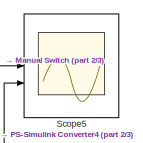
[diagram: root canvas - part 1/3, top center region]
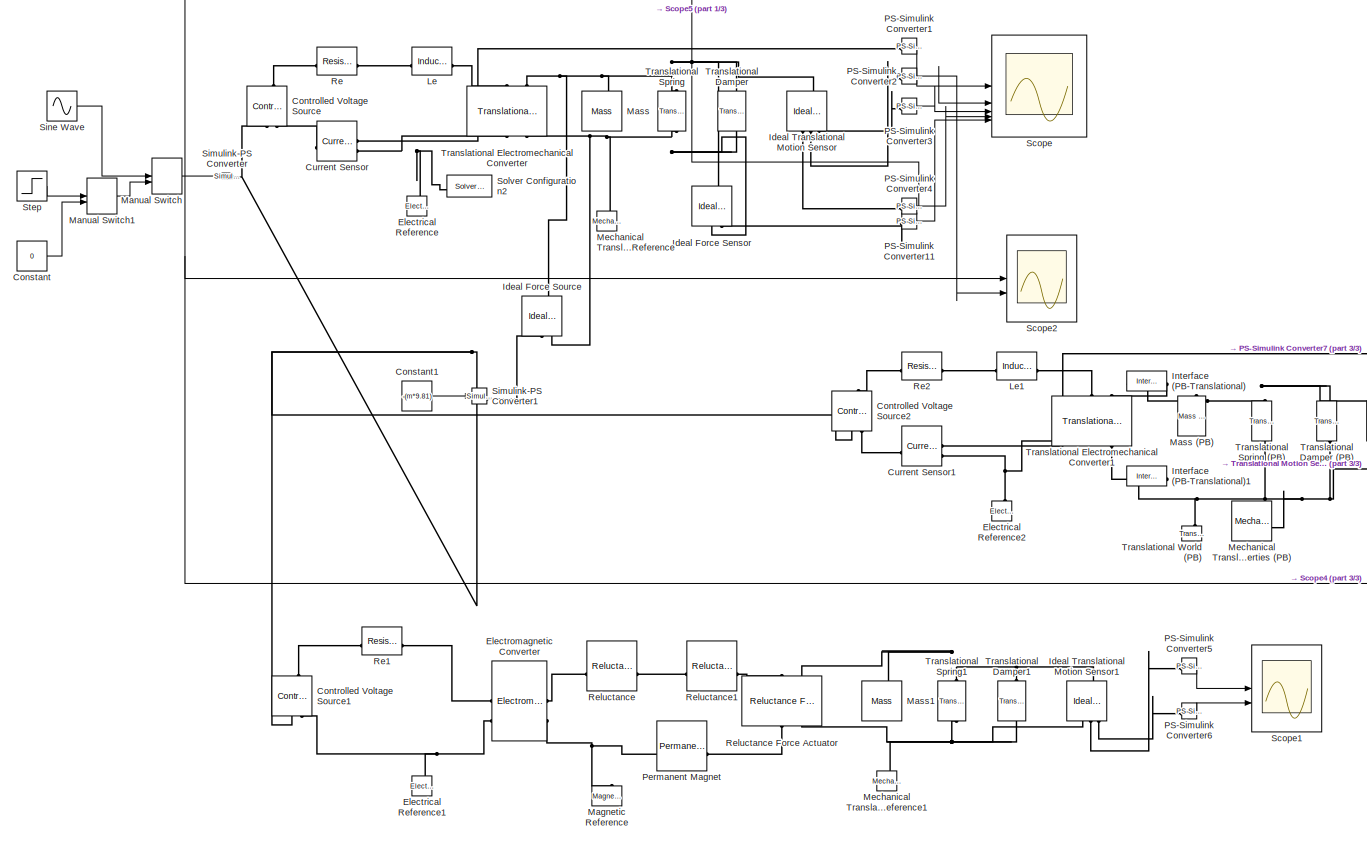
[diagram: root canvas - part 2/3, most of the canvas]
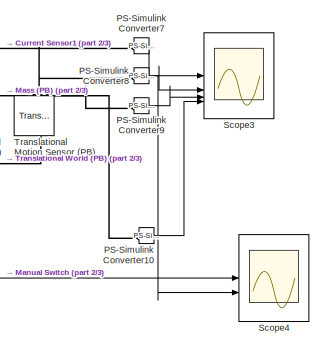
[diagram: root canvas - part 3/3, middle right region]
MODEL slx_aa357332efc0
KIND model
CONFIG AbsTol = auto
CONFIG EnableMultiTasking = off
CONFIG FixedStep = auto
CONFIG MaxStep = 1e-5
CONFIG MinStep = auto
CONFIG RelTol = 1e-3
CONFIG SampleTimeConstraint = Unconstrained
CONFIG SolverName = VariableStepAuto
CONFIG StartTime = 0.0
CONFIG StopTime = 1
BLOCK [Constant] Constant
  Value = 0
BLOCK [Constant] Constant1
  Value = -(m*9.81)
BLOCK [Reference] Controlled Voltage Source  REF=fl_lib/Electrical/Electrical Sources/Controlled Voltage
Source
  NameLocation = right
  SourceBlock = fl_lib/Electrical/Electrical Sources/Controlled Voltage\nSource
  SourceType = Controlled Voltage\nSource
BLOCK [Reference] Controlled Voltage Source1  REF=fl_lib/Electrical/Electrical Sources/Controlled Voltage
Source
  NameLocation = right
  SourceBlock = fl_lib/Electrical/Electrical Sources/Controlled Voltage\nSource
  SourceType = Controlled Voltage\nSource
BLOCK [Reference] Controlled Voltage Source2  REF=fl_lib/Electrical/Electrical Sources/Controlled Voltage
Source
  NameLocation = right
  SourceBlock = fl_lib/Electrical/Electrical Sources/Controlled Voltage\nSource
  SourceType = Controlled Voltage\nSource
BLOCK [Reference] Current Sensor  REF=fl_lib/Electrical/Electrical Sensors/Current Sensor
  SourceBlock = fl_lib/Electrical/Electrical Sensors/Current Sensor
  SourceType = Current Sensor
BLOCK [Reference] Current Sensor1  REF=fl_lib/Electrical/Electrical Sensors/Current Sensor
  SourceBlock = fl_lib/Electrical/Electrical Sensors/Current Sensor
  SourceType = Current Sensor
BLOCK [Reference] Electrical Reference  REF=fl_lib/Electrical/Electrical Elements/Electrical Reference
  NameLocation = right
  SourceBlock = fl_lib/Electrical/Electrical Elements/Electrical Reference
  SourceType = Electrical Reference
BLOCK [Reference] Electrical Reference1  REF=fl_lib/Electrical/Electrical Elements/Electrical Reference
  NameLocation = right
  SourceBlock = fl_lib/Electrical/Electrical Elements/Electrical Reference
  SourceType = Electrical Reference
BLOCK [Reference] Electrical Reference2  REF=fl_lib/Electrical/Electrical Elements/Electrical Reference
  NameLocation = right
  SourceBlock = fl_lib/Electrical/Electrical Elements/Electrical Reference
  SourceType = Electrical Reference
BLOCK [Reference] Electromagnetic Converter  REF=fl_lib/Magnetic/Magnetic Elements/Electromagnetic
Converter
  SourceBlock = fl_lib/Magnetic/Magnetic Elements/Electromagnetic\nConverter
  SourceType = Electromagnetic\nConverter
BLOCK [Reference] Ideal Force Sensor  REF=fl_lib/Mechanical/Mechanical Sensors/Ideal Force Sensor
  NameLocation = left
  SourceBlock = fl_lib/Mechanical/Mechanical Sensors/Ideal Force Sensor
  SourceType = Ideal Force Sensor
BLOCK [Reference] Ideal Force Source  REF=fl_lib/Mechanical/Mechanical Sources/Ideal Force Source
  NameLocation = right
  SourceBlock = fl_lib/Mechanical/Mechanical Sources/Ideal Force Source
  SourceType = Ideal Force Source
BLOCK [Reference] Ideal Translational Motion Sensor  REF=fl_lib/Mechanical/Mechanical Sensors/Ideal Translational
Motion Sensor
  NameLocation = left
  SourceBlock = fl_lib/Mechanical/Mechanical Sensors/Ideal Translational\nMotion Sensor
  SourceType = Ideal Translational\nMotion Sensor
BLOCK [Reference] Ideal Translational Motion Sensor1  REF=fl_lib/Mechanical/Mechanical Sensors/Ideal Translational
Motion Sensor
  NameLocation = left
  SourceBlock = fl_lib/Mechanical/Mechanical Sensors/Ideal Translational\nMotion Sensor
  SourceType = Ideal Translational\nMotion Sensor
BLOCK [Reference] Interface (PB-Translational)  REF=fl_lib/Translational/Utilities/Interface
(PB-Translational)
  NameLocation = top
  SourceBlock = fl_lib/Translational/Utilities/Interface\n(PB-Translational)
  SourceType = Interface\n(PB-Translational)
BLOCK [Reference] Interface (PB-Translational)1  REF=fl_lib/Translational/Utilities/Interface
(PB-Translational)
  NameLocation = top
  SourceBlock = fl_lib/Translational/Utilities/Interface\n(PB-Translational)
  SourceType = Interface\n(PB-Translational)
BLOCK [Reference] Le  REF=fl_lib/Electrical/Electrical Elements/Inductor
  SourceBlock = fl_lib/Electrical/Electrical Elements/Inductor
  SourceType = Inductor
BLOCK [Reference] Le1  REF=fl_lib/Electrical/Electrical Elements/Inductor
  SourceBlock = fl_lib/Electrical/Electrical Elements/Inductor
  SourceType = Inductor
BLOCK [Reference] Magnetic Reference  REF=fl_lib/Magnetic/Magnetic Elements/Magnetic Reference
  NameLocation = right
  SourceBlock = fl_lib/Magnetic/Magnetic Elements/Magnetic Reference
  SourceType = Magnetic Reference
BLOCK [ManualSwitch] Manual Switch
BLOCK [ManualSwitch] Manual Switch1
BLOCK [Reference] Mass  REF=fl_lib/Mechanical/Translational
Elements/Mass
  NameLocation = right
  SourceBlock = fl_lib/Mechanical/Translational\nElements/Mass
  SourceType = Mass
BLOCK [Reference] Mass (PB)  REF=fl_lib/Translational/Elements/Mass (PB)
  NameLocation = left
  SourceBlock = fl_lib/Translational/Elements/Mass (PB)
  SourceType = Mass (PB)
BLOCK [Reference] Mass1  REF=fl_lib/Mechanical/Translational
Elements/Mass
  NameLocation = right
  SourceBlock = fl_lib/Mechanical/Translational\nElements/Mass
  SourceType = Mass
BLOCK [Reference] Mechanical Translational Properties (PB)  REF=fl_lib/Translational/Utilities/Mechanical
Translational
Properties (PB)
  SourceBlock = fl_lib/Translational/Utilities/Mechanical\nTranslational\nProperties (PB)
  SourceType = Mechanical\nTranslational\nProperties (PB)
BLOCK [Reference] Mechanical Translational Reference  REF=fl_lib/Mechanical/Translational
Elements/Mechanical
Translational
Reference
  NameLocation = right
  SourceBlock = fl_lib/Mechanical/Translational\nElements/Mechanical\nTranslational\nReference
  SourceType = Mechanical\nTranslational\nReference
BLOCK [Reference] Mechanical Translational Reference1  REF=fl_lib/Mechanical/Translational
Elements/Mechanical
Translational
Reference
  NameLocation = right
  SourceBlock = fl_lib/Mechanical/Translational\nElements/Mechanical\nTranslational\nReference
  SourceType = Mechanical\nTranslational\nReference
BLOCK [Reference] PS-Simulink Converter1  REF=nesl_utility/PS-Simulink
Converter
  SourceBlock = nesl_utility/PS-Simulink\nConverter
  SourceType = PS-Simulink\nConverter
BLOCK [Reference] PS-Simulink Converter10  REF=nesl_utility/PS-Simulink
Converter
  SourceBlock = nesl_utility/PS-Simulink\nConverter
  SourceType = PS-Simulink\nConverter
BLOCK [Reference] PS-Simulink Converter11  REF=nesl_utility/PS-Simulink
Converter
  SourceBlock = nesl_utility/PS-Simulink\nConverter
  SourceType = PS-Simulink\nConverter
BLOCK [Reference] PS-Simulink Converter2  REF=nesl_utility/PS-Simulink
Converter
  SourceBlock = nesl_utility/PS-Simulink\nConverter
  SourceType = PS-Simulink\nConverter
BLOCK [Reference] PS-Simulink Converter3  REF=nesl_utility/PS-Simulink
Converter
  SourceBlock = nesl_utility/PS-Simulink\nConverter
  SourceType = PS-Simulink\nConverter
BLOCK [Reference] PS-Simulink Converter4  REF=nesl_utility/PS-Simulink
Converter
  SourceBlock = nesl_utility/PS-Simulink\nConverter
  SourceType = PS-Simulink\nConverter
BLOCK [Reference] PS-Simulink Converter5  REF=nesl_utility/PS-Simulink
Converter
  SourceBlock = nesl_utility/PS-Simulink\nConverter
  SourceType = PS-Simulink\nConverter
BLOCK [Reference] PS-Simulink Converter6  REF=nesl_utility/PS-Simulink
Converter
  SourceBlock = nesl_utility/PS-Simulink\nConverter
  SourceType = PS-Simulink\nConverter
BLOCK [Reference] PS-Simulink Converter7  REF=nesl_utility/PS-Simulink
Converter
  SourceBlock = nesl_utility/PS-Simulink\nConverter
  SourceType = PS-Simulink\nConverter
BLOCK [Reference] PS-Simulink Converter8  REF=nesl_utility/PS-Simulink
Converter
  SourceBlock = nesl_utility/PS-Simulink\nConverter
  SourceType = PS-Simulink\nConverter
BLOCK [Reference] PS-Simulink Converter9  REF=nesl_utility/PS-Simulink
Converter
  SourceBlock = nesl_utility/PS-Simulink\nConverter
  SourceType = PS-Simulink\nConverter
BLOCK [Reference] Permanent Magnet  REF=fl_lib/Magnetic/Magnetic Elements/Permanent Magnet
  SourceBlock = fl_lib/Magnetic/Magnetic Elements/Permanent Magnet
  SourceType = Permanent Magnet
BLOCK [Reference] Re  REF=fl_lib/Electrical/Electrical Elements/Resistor
  SourceBlock = fl_lib/Electrical/Electrical Elements/Resistor
  SourceType = Resistor
BLOCK [Reference] Re1  REF=fl_lib/Electrical/Electrical Elements/Resistor
  SourceBlock = fl_lib/Electrical/Electrical Elements/Resistor
  SourceType = Resistor
BLOCK [Reference] Re2  REF=fl_lib/Electrical/Electrical Elements/Resistor
  SourceBlock = fl_lib/Electrical/Electrical Elements/Resistor
  SourceType = Resistor
BLOCK [Reference] Reluctance  REF=fl_lib/Magnetic/Magnetic Elements/Reluctance
  SourceBlock = fl_lib/Magnetic/Magnetic Elements/Reluctance
  SourceType = Reluctance
BLOCK [Reference] Reluctance Force Actuator  REF=fl_lib/Magnetic/Magnetic Elements/Reluctance Force
Actuator
  NameLocation = right
  SourceBlock = fl_lib/Magnetic/Magnetic Elements/Reluctance Force\nActuator
  SourceType = Reluctance Force\nActuator
BLOCK [Reference] Reluctance1  REF=fl_lib/Magnetic/Magnetic Elements/Reluctance
  SourceBlock = fl_lib/Magnetic/Magnetic Elements/Reluctance
  SourceType = Reluctance
BLOCK [Scope] Scope
  Floating = off
  NumInputPorts = 5
  ScopeSpecificationString = Simulink.scopes.TimeScopeBlockCfg('CurrentConfiguration', extmgr.ConfigurationSet(extmgr.Configuration('Core','General UI',true),extmgr.Configuration('Core','Source UI',true),extmgr.Configuration('Sources','WiredSimulink',true),extmgr.Configuration('Visuals','Time Domain',true,'SerializedDisplays',{struct('MinYLimReal','-0.78124','MaxYLimReal','0.78124','YLabelReal','','MinYLimMag','0.00000','MaxY...<+2044ch>
BLOCK [Scope] Scope1
  Floating = off
  NumInputPorts = 2
  ScopeSpecificationString = Simulink.scopes.TimeScopeBlockCfg('CurrentConfiguration', extmgr.ConfigurationSet(extmgr.Configuration('Core','General UI',true),extmgr.Configuration('Core','Source UI',true),extmgr.Configuration('Sources','WiredSimulink',true,'DataLoggingVariableName','ScopeData1'),extmgr.Configuration('Visuals','Time Domain',true,'SerializedDisplays',{struct('MinYLimReal','-0.01097','MaxYLimReal','0.01097','YLab...<+1990ch>
BLOCK [Scope] Scope2
  Floating = off
  NumInputPorts = 2
  ScopeSpecificationString = Simulink.scopes.TimeScopeBlockCfg('CurrentConfiguration', extmgr.ConfigurationSet(extmgr.Configuration('Core','General UI',true),extmgr.Configuration('Core','Source UI',true),extmgr.Configuration('Sources','WiredSimulink',true,'DataLoggingVariableName','ScopeData1'),extmgr.Configuration('Visuals','Time Domain',true,'SerializedDisplays',{struct('MinYLimReal','-17.75606','MaxYLimReal','17.76294','YL...<+1989ch>
BLOCK [Scope] Scope3
  Floating = off
  NumInputPorts = 4
  ScopeSpecificationString = Simulink.scopes.TimeScopeBlockCfg('CurrentConfiguration', extmgr.ConfigurationSet(extmgr.Configuration('Core','General UI',true),extmgr.Configuration('Core','Source UI',true),extmgr.Configuration('Sources','WiredSimulink',true,'DataLoggingVariableName','ScopeData1'),extmgr.Configuration('Visuals','Time Domain',true,'SerializedDisplays',{struct('MinYLimReal','-1.12739','MaxYLimReal','1.14865','YLab...<+2068ch>
BLOCK [Scope] Scope4
  Floating = off
  NumInputPorts = 2
  ScopeSpecificationString = Simulink.scopes.TimeScopeBlockCfg('CurrentConfiguration', extmgr.ConfigurationSet(extmgr.Configuration('Core','General UI',true),extmgr.Configuration('Core','Source UI',true),extmgr.Configuration('Sources','WiredSimulink',true,'DataLoggingVariableName','ScopeData2'),extmgr.Configuration('Visuals','Time Domain',true,'SerializedDisplays',{struct('MinYLimReal','-107201.86497','MaxYLimReal','107244.08...<+2022ch>
BLOCK [Scope] Scope5
  Floating = off
  NumInputPorts = 2
  ScopeSpecificationString = Simulink.scopes.TimeScopeBlockCfg('CurrentConfiguration', extmgr.ConfigurationSet(extmgr.Configuration('Core','General UI',true),extmgr.Configuration('Core','Source UI',true),extmgr.Configuration('Sources','WiredSimulink',true,'DataLoggingVariableName','ScopeData1'),extmgr.Configuration('Visuals','Time Domain',true,'SerializedDisplays',{struct('MinYLimReal','-0.0000000025','MaxYLimReal','0.0000000...<+2054ch>
BLOCK [Reference] Simulink-PS Converter  REF=nesl_utility/Simulink-PS
Converter
  SourceBlock = nesl_utility/Simulink-PS\nConverter
  SourceType = Simulink-PS\nConverter
BLOCK [Reference] Simulink-PS Converter1  REF=nesl_utility/Simulink-PS
Converter
  SourceBlock = nesl_utility/Simulink-PS\nConverter
  SourceType = Simulink-PS\nConverter
BLOCK [Sin] Sine Wave
  Amplitude = 5
  Frequency = 252
  SampleTime = 0
BLOCK [Reference] Solver Configuration2  REF=nesl_utility/Solver
Configuration
  NameLocation = top
  SourceBlock = nesl_utility/Solver\nConfiguration
  SourceType = Solver\nConfiguration
BLOCK [Step] Step
  After = 5
  SampleTime = 0
  Time = 0.5
BLOCK [Reference] Translational Damper  REF=fl_lib/Mechanical/Translational
Elements/Translational Damper
  NameLocation = right
  SourceBlock = fl_lib/Mechanical/Translational\nElements/Translational Damper
  SourceType = Translational Damper
BLOCK [Reference] Translational Damper (PB)  REF=fl_lib/Translational/Elements/Translational Damper
(PB)
  NameLocation = right
  SourceBlock = fl_lib/Translational/Elements/Translational Damper\n(PB)
  SourceType = Translational Damper\n(PB)
BLOCK [Reference] Translational Damper1  REF=fl_lib/Mechanical/Translational
Elements/Translational Damper
  NameLocation = right
  SourceBlock = fl_lib/Mechanical/Translational\nElements/Translational Damper
  SourceType = Translational Damper
BLOCK [Reference] Translational Electromechanical Converter  REF=fl_lib/Electrical/Electrical Elements/Translational
Electromechanical
Converter
  NameLocation = right
  SourceBlock = fl_lib/Electrical/Electrical Elements/Translational\nElectromechanical\nConverter
  SourceType = Translational\nElectromechanical\nConverter
BLOCK [Reference] Translational Electromechanical Converter1  REF=fl_lib/Electrical/Electrical Elements/Translational
Electromechanical
Converter
  NameLocation = right
  SourceBlock = fl_lib/Electrical/Electrical Elements/Translational\nElectromechanical\nConverter
  SourceType = Translational\nElectromechanical\nConverter
BLOCK [Reference] Translational Motion Sensor (PB)  REF=fl_lib/Translational/Sensors/Translational Motion
Sensor (PB)
  NameLocation = right
  SourceBlock = fl_lib/Translational/Sensors/Translational Motion\nSensor (PB)
  SourceType = Translational Motion\nSensor (PB)
BLOCK [Reference] Translational Spring  REF=fl_lib/Mechanical/Translational
Elements/Translational Spring
  NameLocation = left
  SourceBlock = fl_lib/Mechanical/Translational\nElements/Translational Spring
  SourceType = Translational Spring
BLOCK [Reference] Translational Spring (PB)  REF=fl_lib/Translational/Elements/Translational Spring
(PB)
  NameLocation = right
  SourceBlock = fl_lib/Translational/Elements/Translational Spring\n(PB)
  SourceType = Translational Spring\n(PB)
BLOCK [Reference] Translational Spring1  REF=fl_lib/Mechanical/Translational
Elements/Translational Spring
  NameLocation = left
  SourceBlock = fl_lib/Mechanical/Translational\nElements/Translational Spring
  SourceType = Translational Spring
BLOCK [Reference] Translational World (PB)  REF=fl_lib/Translational/Elements/Translational World
(PB)
  NameLocation = right
  SourceBlock = fl_lib/Translational/Elements/Translational World\n(PB)
  SourceType = Translational World\n(PB)
LINE Constant1:1 -> Simulink-PS Converter1:1
LINE Constant:1 -> Manual Switch1:2
LINE Manual Switch1:1 -> Manual Switch:2
NET Manual Switch:1 -> Scope2:1, Scope4:1, Scope5:1, Simulink-PS Converter:1
LINE PS-Simulink Converter10:1 -> Scope3:4
LINE PS-Simulink Converter11:1 -> Scope:5
LINE PS-Simulink Converter1:1 -> Scope:1
NET PS-Simulink Converter2:1 -> Scope2:2, Scope:2
LINE PS-Simulink Converter3:1 -> Scope:3
NET PS-Simulink Converter4:1 -> Scope5:2, Scope:4
LINE PS-Simulink Converter5:1 -> Scope1:1
LINE PS-Simulink Converter6:1 -> Scope1:2
LINE PS-Simulink Converter7:1 -> Scope3:1
NET PS-Simulink Converter8:1 -> Scope3:2, Scope4:2
LINE PS-Simulink Converter9:1 -> Scope3:3
LINE Sine Wave:1 -> Manual Switch:1
LINE Step:1 -> Manual Switch1:1
PLINE Controlled Voltage Source1:LConn1 -- Re1:LConn1
PNET net1: Controlled Voltage Source1:RConn1 -- Controlled Voltage Source2:RConn1 -- Controlled Voltage Source:RConn1 -- Simulink-PS Converter:RConn1
PNET net2: Controlled Voltage Source1:RConn2 -- Electrical Reference1:LConn1 -- Electromagnetic Converter:LConn2
PLINE Controlled Voltage Source2:LConn1 -- Re2:LConn1
PLINE Controlled Voltage Source2:RConn2 -- Current Sensor1:LConn1
PLINE Controlled Voltage Source:LConn1 -- Re:LConn1
PLINE Controlled Voltage Source:RConn2 -- Current Sensor:LConn1
PLINE Current Sensor1:RConn1 -- PS-Simulink Converter7:LConn1
PNET net3: Current Sensor1:RConn2 -- Electrical Reference2:LConn1 -- Translational Electromechanical Converter1:RConn1
PLINE Current Sensor:RConn1 -- PS-Simulink Converter1:LConn1
PNET net4: Current Sensor:RConn2 -- Electrical Reference:LConn1 -- Solver Configuration2:RConn1 -- Translational Electromechanical Converter:RConn1
PLINE Electromagnetic Converter:LConn1 -- Re1:RConn1
PLINE Electromagnetic Converter:RConn1 -- Reluctance:LConn1
PNET net5: Electromagnetic Converter:RConn2 -- Magnetic Reference:LConn1 -- Permanent Magnet:LConn1
PNET net6: Ideal Force Sensor:LConn1 -- Ideal Force Source:LConn1 -- Ideal Translational Motion Sensor:LConn1 -- Mass:LConn1 -- Translational Damper:RConn1 -- Translational Electromechanical Converter:LConn2 -- Translational Spring:LConn1
PNET net7: Ideal Force Sensor:RConn1 -- Ideal Force Source:RConn2 -- Mechanical Translational Reference:LConn1 -- Translational Damper:LConn1 -- Translational Electromechanical Converter:RConn2 -- Translational Spring:RConn1
PLINE Ideal Force Sensor:RConn2 -- PS-Simulink Converter11:LConn1
PLINE Ideal Force Source:RConn1 -- Simulink-PS Converter1:RConn1
PNET net8: Ideal Translational Motion Sensor1:LConn1 -- Mass1:LConn1 -- Reluctance Force Actuator:LConn2 -- Translational Damper1:RConn1 -- Translational Spring1:LConn1
PNET net9: Ideal Translational Motion Sensor1:RConn1 -- Mechanical Translational Reference1:LConn1 -- Reluctance Force Actuator:RConn2 -- Translational Damper1:LConn1 -- Translational Spring1:RConn1
PLINE Ideal Translational Motion Sensor1:RConn2 -- PS-Simulink Converter5:LConn1
PLINE Ideal Translational Motion Sensor1:RConn3 -- PS-Simulink Converter6:LConn1
PLINE Ideal Translational Motion Sensor:RConn1 -- PS-Simulink Converter4:LConn1
PLINE Ideal Translational Motion Sensor:RConn2 -- PS-Simulink Converter2:LConn1
PLINE Ideal Translational Motion Sensor:RConn3 -- PS-Simulink Converter3:LConn1
PNET net10: Interface (PB-Translational)1:LConn1 -- Mechanical Translational Properties (PB):RConn1 -- Translational Damper (PB):LConn1 -- Translational Motion Sensor (PB):LConn1 -- Translational Spring (PB):LConn1 -- Translational World (PB):RConn1
PLINE Interface (PB-Translational)1:RConn1 -- Translational Electromechanical Converter1:RConn2
PNET net11: Interface (PB-Translational):LConn1 -- Mass (PB):LConn1 -- Translational Damper (PB):RConn1 -- Translational Motion Sensor (PB):RConn1 -- Translational Spring (PB):RConn1
PLINE Interface (PB-Translational):RConn1 -- Translational Electromechanical Converter1:LConn2
PLINE Le1:LConn1 -- Re2:RConn1
PLINE Le1:RConn1 -- Translational Electromechanical Converter1:LConn1
PLINE Le:LConn1 -- Re:RConn1
PLINE Le:RConn1 -- Translational Electromechanical Converter:LConn1
PLINE PS-Simulink Converter10:LConn1 -- Translational Motion Sensor (PB):RConn4
PLINE PS-Simulink Converter8:LConn1 -- Translational Motion Sensor (PB):RConn2
PLINE PS-Simulink Converter9:LConn1 -- Translational Motion Sensor (PB):RConn3
PLINE Permanent Magnet:RConn1 -- Reluctance Force Actuator:RConn1
PLINE Reluctance Force Actuator:LConn1 -- Reluctance1:RConn1
PLINE Reluctance1:LConn1 -- Reluctance:RConn1
note: NET lines group one-source signal fan-out (src -> all destinations, sorted); 1:1 wires keep LINE; PNET lines group multi-terminal physical nets as a canonical sorted terminal list (undirected conserving connections); 2-terminal nets keep the pairwise PLINE form
